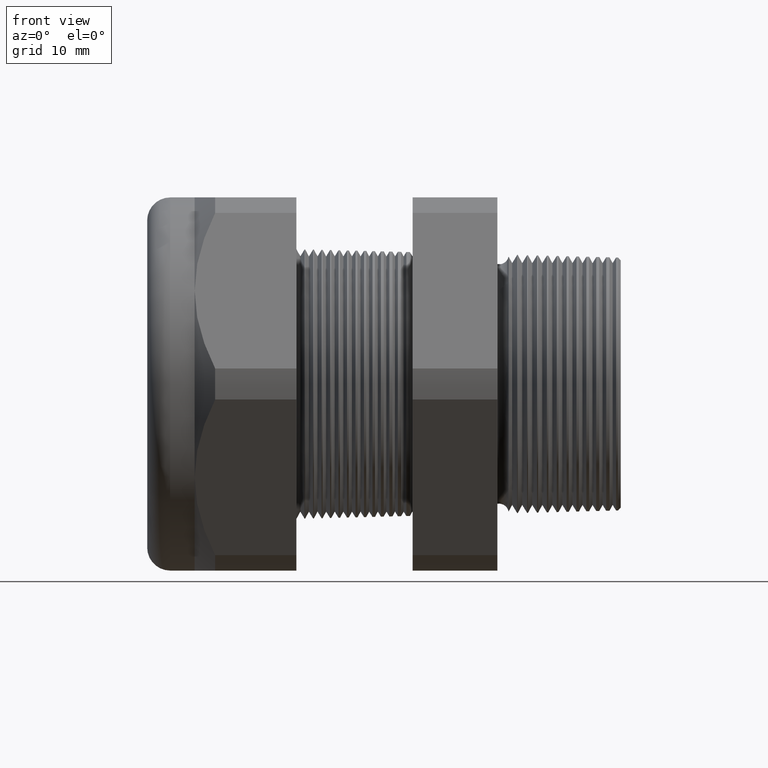
[diagram: clean part render]
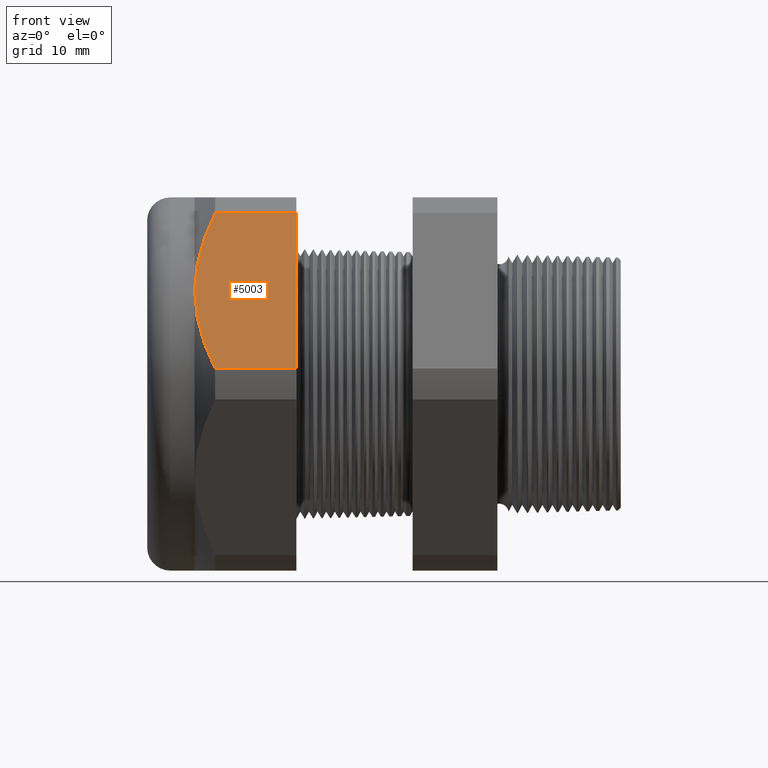
[diagram: same view with one face highlighted and labeled with its STEP entity id]
A machine part, front view. The second image highlights one B-rep face of the part: STEP entity #5003.
In plain terms, the highlighted planar face has unit normal (0, -0.866, 0.5).
Its self-contained STEP definition (entity closure, byte-faithful):
#718 = DIRECTION ( 'NONE',  ( 0.0000000000000000000, -0.4999999999999995600, -0.8660254037844388200 ) ) ;
#719 = VECTOR ( 'NONE', #718, 39.37007874015748900 ) ;
#720 = CARTESIAN_POINT ( 'NONE',  ( -1.010314960629921100, -0.4454165124598855100, 0.5285159698893426800 ) ) ;
#721 = LINE ( 'NONE', #720, #719 ) ;
#4792 = CARTESIAN_POINT ( 'NONE',  ( -1.364645669291338000, -0.5900081318517965700, 0.2780759387538904700 ) ) ;
#4793 = CARTESIAN_POINT ( 'NONE',  ( -1.364645669291338500, -0.5629165124598853900, 0.3249999999999997300 ) ) ;
#4794 = CARTESIAN_POINT ( 'NONE',  ( -1.364645669291338500, -0.5629165124598853900, 0.3249999999999997300 ) ) ;
#4795 = B_SPLINE_CURVE_WITH_KNOTS ( 'NONE', 3,
 ( #4793, #4792, #4852, #4851, #4850, #4849 ),
 .UNSPECIFIED., .F., .F.,
 ( 4, 2, 4 ),
 ( 0.008163776578903783600, 0.01224274182034620200, 0.01632170706178862100 ),
 .UNSPECIFIED. ) ;
#4797 = CARTESIAN_POINT ( 'NONE',  ( -1.010314960629921100, -0.7194909755756819800, 0.05380507471562025900 ) ) ;
#4808 = DIRECTION ( 'NONE',  ( -1.000000000000000000, 0.0000000000000000000, 0.0000000000000000000 ) ) ;
#4809 = VECTOR ( 'NONE', #4808, 39.37007874015748100 ) ;
#4810 = CARTESIAN_POINT ( 'NONE',  ( 0.1200000000000000900, -0.7194909755756819800, 0.05380507471562025900 ) ) ;
#4811 = LINE ( 'NONE', #4810, #4809 ) ;
#4812 = CARTESIAN_POINT ( 'NONE',  ( -1.293145669291338600, -0.7194909755756819800, 0.05380507471562022400 ) ) ;
#4823 = DIRECTION ( 'NONE',  ( -1.000000000000000000, 0.0000000000000000000, 0.0000000000000000000 ) ) ;
#4824 = VECTOR ( 'NONE', #4823, 39.37007874015748100 ) ;
#4825 = CARTESIAN_POINT ( 'NONE',  ( 0.1200000000000000900, -0.4063420493440885700, 0.5961949252843791200 ) ) ;
#4826 = LINE ( 'NONE', #4825, #4824 ) ;
#4827 = CARTESIAN_POINT ( 'NONE',  ( -1.010314960629921100, -0.4063420493440885700, 0.5961949252843791200 ) ) ;
#4828 = CARTESIAN_POINT ( 'NONE',  ( -1.293145669291338600, -0.4063420493440885700, 0.5961949252843791200 ) ) ;
#4834 = CARTESIAN_POINT ( 'NONE',  ( -1.364645669291338500, -0.5629165124598853900, 0.3249999999999997300 ) ) ;
#4835 = CARTESIAN_POINT ( 'NONE',  ( -1.364645669291338500, -0.5561389602113052700, 0.3367390648454928200 ) ) ;
#4836 = CARTESIAN_POINT ( 'NONE',  ( -1.364216759191441800, -0.5492994181763347600, 0.3485854991505650300 ) ) ;
#4837 = CARTESIAN_POINT ( 'NONE',  ( -1.362513212994342900, -0.5357104722797962900, 0.3721222438646742400 ) ) ;
#4838 = CARTESIAN_POINT ( 'NONE',  ( -1.361244147852753300, -0.5289679975772971800, 0.3838005526181505500 ) ) ;
#4839 = CARTESIAN_POINT ( 'NONE',  ( -1.356260635251699500, -0.5088871528993771400, 0.4185815958592071800 ) ) ;
#4840 = CARTESIAN_POINT ( 'NONE',  ( -1.351369503974021000, -0.4956954080403314600, 0.4414303681955597500 ) ) ;
#4841 = CARTESIAN_POINT ( 'NONE',  ( -1.332638942225223800, -0.4566257321431000900, 0.5091010318848138100 ) ) ;
#4842 = CARTESIAN_POINT ( 'NONE',  ( -1.314767232512606300, -0.4312502584378782900, 0.5530526416083857400 ) ) ;
#4843 = CARTESIAN_POINT ( 'NONE',  ( -1.293145669291338600, -0.4063420493440885700, 0.5961949252843791200 ) ) ;
#4848 = B_SPLINE_CURVE_WITH_KNOTS ( 'NONE', 3,
 ( #4843, #4842, #4841, #4840, #4839, #4838, #4837, #4836, #4835, #4834 ),
 .UNSPECIFIED., .F., .F.,
 ( 4, 2, 2, 2, 4 ),
 ( 2.483249165337772200E-007, 0.004082012451910163300, 0.006122894515406976000, 0.007143335547155379000, 0.008163776578903783600 ),
 .UNSPECIFIED. ) ;
#4849 = CARTESIAN_POINT ( 'NONE',  ( -1.293145669291338600, -0.7194909755756819800, 0.05380507471562022400 ) ) ;
#4850 = CARTESIAN_POINT ( 'NONE',  ( -1.314794001287756400, -0.6945519286446000300, 0.09700077109259888600 ) ) ;
#4851 = CARTESIAN_POINT ( 'NONE',  ( -1.332917759362547400, -0.6687756690813084800, 0.1416465622853033100 ) ) ;
#4852 = CARTESIAN_POINT ( 'NONE',  ( -1.357805912917037400, -0.6165592345672921100, 0.2320880798536728600 ) ) ;
#4874 = DIRECTION ( 'NONE',  ( 0.0000000000000000000, -0.4999999999999995600, -0.8660254037844388200 ) ) ;
#4875 = DIRECTION ( 'NONE',  ( 0.0000000000000000000, -0.8660254037844389300, 0.4999999999999996100 ) ) ;
#4876 = CARTESIAN_POINT ( 'NONE',  ( 0.1200000000000000900, -0.7194909755756819800, 0.05380507471562023100 ) ) ;
#4877 = AXIS2_PLACEMENT_3D ( 'NONE', #4876, #4875, #4874 ) ;
#4878 = PLANE ( 'NONE',  #4877 ) ;
#4879 = FACE_OUTER_BOUND ( 'NONE', #5228, .T. ) ;
#4975 = VERTEX_POINT ( 'NONE', #4812 ) ;
#4976 = EDGE_CURVE ( 'NONE', #4981, #4975, #4811, .T. ) ;
#4981 = VERTEX_POINT ( 'NONE', #4797 ) ;
#4988 = ORIENTED_EDGE ( 'NONE', *, *, #5036, .F. ) ;
#4990 = EDGE_CURVE ( 'NONE', #4993, #4975, #4795, .T. ) ;
#4991 = ORIENTED_EDGE ( 'NONE', *, *, #4990, .T. ) ;
#4992 = ORIENTED_EDGE ( 'NONE', *, *, #4976, .F. ) ;
#4993 = VERTEX_POINT ( 'NONE', #4794 ) ;
#4994 = EDGE_CURVE ( 'NONE', #4998, #4993, #4848, .T. ) ;
#4997 = ORIENTED_EDGE ( 'NONE', *, *, #4994, .T. ) ;
#4998 = VERTEX_POINT ( 'NONE', #4828 ) ;
#4999 = VERTEX_POINT ( 'NONE', #4827 ) ;
#5001 = EDGE_CURVE ( 'NONE', #4999, #4998, #4826, .T. ) ;
#5003 = ADVANCED_FACE ( 'NONE', ( #4879 ), #4878, .T. ) ;
#5006 = ORIENTED_EDGE ( 'NONE', *, *, #5001, .T. ) ;
#5036 = EDGE_CURVE ( 'NONE', #4999, #4981, #721, .T. ) ;
#5228 = EDGE_LOOP ( 'NONE', ( #5006, #4997, #4991, #4992, #4988 ) ) ;